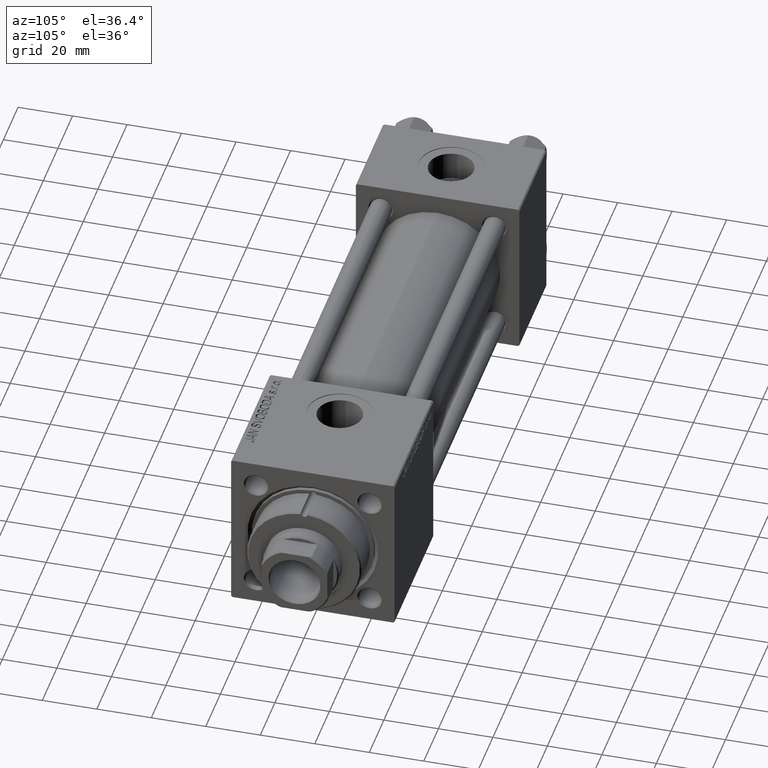
[diagram: clean part render]
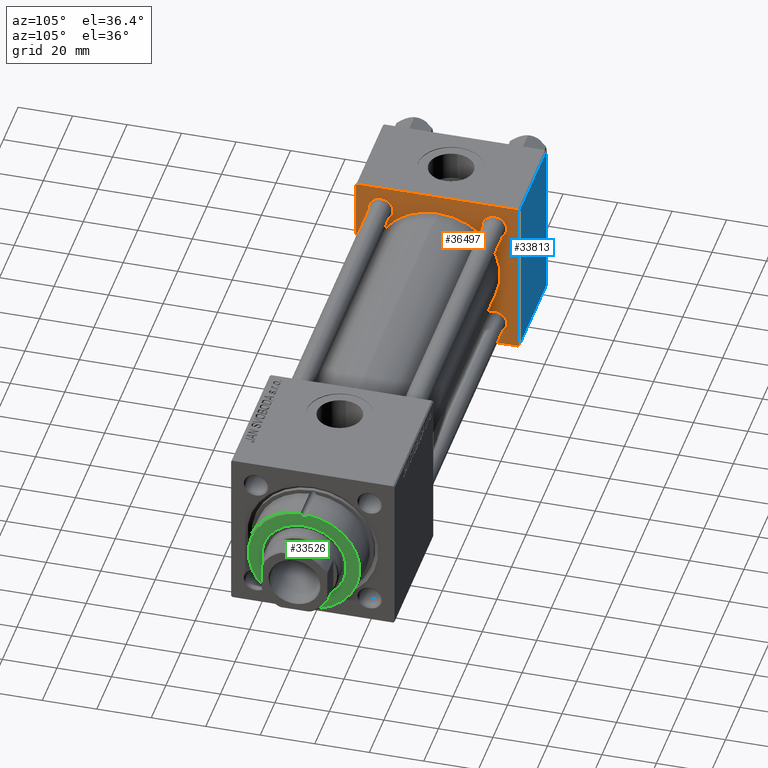
[diagram: same view with three faces highlighted in distinct colors, each labeled with its STEP entity id]
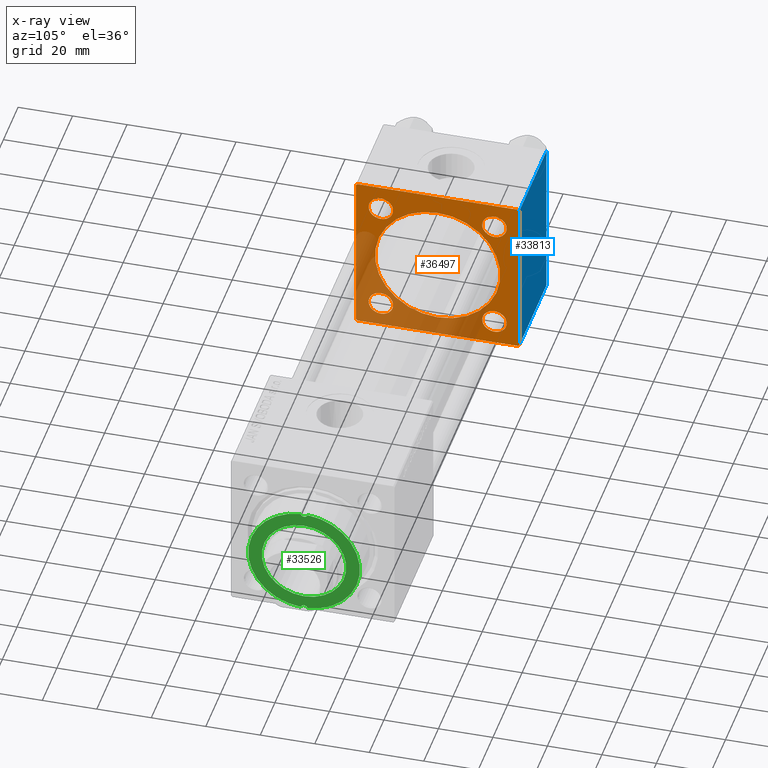
[diagram: x-ray of the same camera — body ghosted, the three highlighted faces saturated]
A machine part, auxiliary view with three faces highlighted in distinct colors.
The next image is the same camera in x-ray (body ghosted, the three faces saturated) — at least one of them is partly hidden behind the body in this view.
Their STEP definitions:

[orange] entity #36497 — the highlighted planar face has unit normal (-1, 0, 0).
#9 = VERTEX_POINT ( 'NONE', #46568 ) ;
#469 = EDGE_CURVE ( 'NONE', #6097, #21026, #3051, .T. ) ;
#531 = ORIENTED_EDGE ( 'NONE', *, *, #14403, .T. ) ;
#652 = DIRECTION ( 'NONE',  ( 0.000000000000000000, 0.000000000000000000, 1.000000000000000000 ) ) ;
#1085 = EDGE_CURVE ( 'NONE', #21924, #43237, #11434, .T. ) ;
#1884 = ORIENTED_EDGE ( 'NONE', *, *, #19276, .F. ) ;
#2124 = VECTOR ( 'NONE', #39286, 1000.000000000000000 ) ;
#3051 = CIRCLE ( 'NONE', #19726, 4.499999999999976019 ) ;
#3818 = DIRECTION ( 'NONE',  ( 0.000000000000000000, 0.000000000000000000, -1.000000000000000000 ) ) ;
#4384 = DIRECTION ( 'NONE',  ( -1.000000000000000000, 0.000000000000000000, -0.000000000000000000 ) ) ;
#4801 = CARTESIAN_POINT ( 'NONE',  ( 37.00000000000000000, -20.84999999999999076, 20.85000000000000497 ) ) ;
#4823 = DIRECTION ( 'NONE',  ( -1.000000000000000000, 0.000000000000000000, -0.000000000000000000 ) ) ;
#5423 = DIRECTION ( 'NONE',  ( 0.000000000000000000, 0.000000000000000000, 1.000000000000000000 ) ) ;
#5666 = EDGE_CURVE ( 'NONE', #40863, #24248, #49898, .T. ) ;
#5994 = CARTESIAN_POINT ( 'NONE',  ( 37.00000000000000000, -20.84999999999999076, -16.35000000000002629 ) ) ;
#6097 = VERTEX_POINT ( 'NONE', #44087 ) ;
#6130 = CIRCLE ( 'NONE', #50258, 4.499999999999976019 ) ;
#6324 = CARTESIAN_POINT ( 'NONE',  ( 37.00000000000000000, 29.49999999999997868, -30.00000000000000000 ) ) ;
#6518 = EDGE_CURVE ( 'NONE', #43237, #21924, #9120, .T. ) ;
#6682 = AXIS2_PLACEMENT_3D ( 'NONE', #34155, #38053, #50091 ) ;
#7171 = CARTESIAN_POINT ( 'NONE',  ( 37.00000000000000000, 20.84999999999999787, 20.85000000000000142 ) ) ;
#7534 = EDGE_CURVE ( 'NONE', #37204, #9, #16078, .T. ) ;
#8302 = DIRECTION ( 'NONE',  ( 0.000000000000000000, 0.7071067811865474617, -0.7071067811865474617 ) ) ;
#8693 = DIRECTION ( 'NONE',  ( -0.000000000000000000, 0.7071067811865574537, 0.7071067811865376918 ) ) ;
#8819 = CARTESIAN_POINT ( 'NONE',  ( 37.00000000000000000, -29.50000000000001066, -30.00000000000000711 ) ) ;
#9077 = EDGE_CURVE ( 'NONE', #24248, #40863, #10015, .T. ) ;
#9120 = CIRCLE ( 'NONE', #39077, 4.499999999999976019 ) ;
#9228 = DIRECTION ( 'NONE',  ( -1.000000000000000000, 0.000000000000000000, -0.000000000000000000 ) ) ;
#9325 = CARTESIAN_POINT ( 'NONE',  ( 37.00000000000000000, -30.00000000000000000, 29.49999999999999289 ) ) ;
#9973 = CARTESIAN_POINT ( 'NONE',  ( 37.00000000000000000, -20.84999999999999076, 20.85000000000000497 ) ) ;
#10015 = CIRCLE ( 'NONE', #12554, 4.499999999999976019 ) ;
#10108 = CARTESIAN_POINT ( 'NONE',  ( 37.00000000000000000, -29.49999999999998579, 29.99999999999999289 ) ) ;
#10480 = CARTESIAN_POINT ( 'NONE',  ( 37.00000000000000711, -2.602085213965210642E-15, 0.000000000000000000 ) ) ;
#10537 = EDGE_LOOP ( 'NONE', ( #30786, #43162 ) ) ;
#10549 = CARTESIAN_POINT ( 'NONE',  ( 37.00000000000000000, 20.84999999999999787, -20.85000000000000142 ) ) ;
#10943 = EDGE_CURVE ( 'NONE', #18357, #12196, #14327, .T. ) ;
#11434 = CIRCLE ( 'NONE', #25569, 4.499999999999976019 ) ;
#11693 = ORIENTED_EDGE ( 'NONE', *, *, #9077, .T. ) ;
#11778 = CARTESIAN_POINT ( 'NONE',  ( 37.00000000000000000, 29.49999999999999289, 30.00000000000000000 ) ) ;
#12196 = VERTEX_POINT ( 'NONE', #11778 ) ;
#12554 = AXIS2_PLACEMENT_3D ( 'NONE', #44275, #4384, #48203 ) ;
#12726 = CARTESIAN_POINT ( 'NONE',  ( 37.00000000000000000, 29.99999999999999289, 29.50000000000000000 ) ) ;
#12876 = CARTESIAN_POINT ( 'NONE',  ( 37.00000000000000711, 2.146024240737016609E-16, -23.00000000000000000 ) ) ;
#13230 = ORIENTED_EDGE ( 'NONE', *, *, #33641, .T. ) ;
#14327 = LINE ( 'NONE', #42230, #15115 ) ;
#14403 = EDGE_CURVE ( 'NONE', #12196, #20566, #22364, .T. ) ;
#14430 = CIRCLE ( 'NONE', #46947, 23.00000000000000000 ) ;
#14556 = DIRECTION ( 'NONE',  ( 0.000000000000000000, -1.000000000000000000, -1.156482317317871725E-16 ) ) ;
#14843 = ORIENTED_EDGE ( 'NONE', *, *, #51039, .T. ) ;
#14943 = FACE_BOUND ( 'NONE', #30082, .T. ) ;
#14988 = CARTESIAN_POINT ( 'NONE',  ( 37.00000000000000000, -20.84999999999999076, 16.35000000000002629 ) ) ;
#15115 = VECTOR ( 'NONE', #45386, 1000.000000000000114 ) ;
#16078 = LINE ( 'NONE', #43198, #16648 ) ;
#16299 = CARTESIAN_POINT ( 'NONE',  ( 37.00000000000000000, 20.84999999999999787, -20.85000000000000142 ) ) ;
#16441 = DIRECTION ( 'NONE',  ( -1.000000000000000000, 0.000000000000000000, -0.000000000000000000 ) ) ;
#16636 = CARTESIAN_POINT ( 'NONE',  ( 37.00000000000000000, -20.84999999999999076, -20.85000000000000497 ) ) ;
#16648 = VECTOR ( 'NONE', #40319, 1000.000000000000000 ) ;
#17426 = LINE ( 'NONE', #41917, #39571 ) ;
#17593 = AXIS2_PLACEMENT_3D ( 'NONE', #23265, #43871, #31606 ) ;
#18040 = ORIENTED_EDGE ( 'NONE', *, *, #23411, .T. ) ;
#18357 = VERTEX_POINT ( 'NONE', #12726 ) ;
#18476 = VERTEX_POINT ( 'NONE', #45822 ) ;
#18980 = CARTESIAN_POINT ( 'NONE',  ( 37.00000000000000000, 29.99999999999999289, 30.00000000000000000 ) ) ;
#19087 = EDGE_CURVE ( 'NONE', #37204, #28132, #45451, .T. ) ;
#19105 = FACE_OUTER_BOUND ( 'NONE', #48819, .T. ) ;
#19276 = EDGE_CURVE ( 'NONE', #18476, #32796, #14430, .T. ) ;
#19363 = FACE_BOUND ( 'NONE', #33929, .T. ) ;
#19726 = AXIS2_PLACEMENT_3D ( 'NONE', #51399, #16441, #28141 ) ;
#20415 = ORIENTED_EDGE ( 'NONE', *, *, #51145, .T. ) ;
#20566 = VERTEX_POINT ( 'NONE', #10108 ) ;
#21026 = VERTEX_POINT ( 'NONE', #24311 ) ;
#21924 = VERTEX_POINT ( 'NONE', #30410 ) ;
#21951 = DIRECTION ( 'NONE',  ( 0.000000000000000000, 0.000000000000000000, 1.000000000000000000 ) ) ;
#22253 = EDGE_LOOP ( 'NONE', ( #1884, #30026 ) ) ;
#22364 = LINE ( 'NONE', #18980, #45088 ) ;
#23265 = CARTESIAN_POINT ( 'NONE',  ( 37.00000000000000000, 0.000000000000000000, 0.000000000000000000 ) ) ;
#23301 = DIRECTION ( 'NONE',  ( 0.000000000000000000, 0.000000000000000000, 1.000000000000000000 ) ) ;
#23411 = EDGE_CURVE ( 'NONE', #34366, #49537, #30518, .T. ) ;
#23909 = ORIENTED_EDGE ( 'NONE', *, *, #6518, .T. ) ;
#24248 = VERTEX_POINT ( 'NONE', #5994 ) ;
#24311 = CARTESIAN_POINT ( 'NONE',  ( 37.00000000000000000, 20.84999999999999787, 25.34999999999997655 ) ) ;
#24493 = ORIENTED_EDGE ( 'NONE', *, *, #32312, .F. ) ;
#25569 = AXIS2_PLACEMENT_3D ( 'NONE', #16299, #4823, #652 ) ;
#25862 = DIRECTION ( 'NONE',  ( 1.000000000000000000, -0.000000000000000000, 0.000000000000000000 ) ) ;
#26070 = ORIENTED_EDGE ( 'NONE', *, *, #49149, .T. ) ;
#27144 = CARTESIAN_POINT ( 'NONE',  ( 37.00000000000000000, -20.84999999999999076, 25.34999999999998010 ) ) ;
#27229 = DIRECTION ( 'NONE',  ( -1.000000000000000000, 0.000000000000000000, -0.000000000000000000 ) ) ;
#27283 = LINE ( 'NONE', #46620, #2124 ) ;
#27754 = VECTOR ( 'NONE', #8693, 999.9999999999998863 ) ;
#28132 = VERTEX_POINT ( 'NONE', #50971 ) ;
#28141 = DIRECTION ( 'NONE',  ( 0.000000000000000000, 0.000000000000000000, 1.000000000000000000 ) ) ;
#29160 = CIRCLE ( 'NONE', #6682, 23.00000000000000000 ) ;
#29841 = DIRECTION ( 'NONE',  ( -1.000000000000000000, 0.000000000000000000, -0.000000000000000000 ) ) ;
#30026 = ORIENTED_EDGE ( 'NONE', *, *, #34568, .F. ) ;
#30082 = EDGE_LOOP ( 'NONE', ( #18040, #13230 ) ) ;
#30410 = CARTESIAN_POINT ( 'NONE',  ( 37.00000000000000000, 20.84999999999999787, -25.34999999999997655 ) ) ;
#30518 = CIRCLE ( 'NONE', #33843, 4.499999999999976019 ) ;
#30786 = ORIENTED_EDGE ( 'NONE', *, *, #469, .T. ) ;
#31145 = CARTESIAN_POINT ( 'NONE',  ( 37.00000000000000000, -30.00000000000000000, -29.50000000000001776 ) ) ;
#31405 = DIRECTION ( 'NONE',  ( 0.000000000000000000, 0.000000000000000000, 1.000000000000000000 ) ) ;
#31606 = DIRECTION ( 'NONE',  ( -0.000000000000000000, 0.000000000000000000, 1.000000000000000000 ) ) ;
#31871 = FACE_BOUND ( 'NONE', #22253, .T. ) ;
#32011 = ORIENTED_EDGE ( 'NONE', *, *, #10943, .T. ) ;
#32312 = EDGE_CURVE ( 'NONE', #18357, #28132, #35633, .T. ) ;
#32796 = VERTEX_POINT ( 'NONE', #12876 ) ;
#33559 = VERTEX_POINT ( 'NONE', #31145 ) ;
#33641 = EDGE_CURVE ( 'NONE', #49537, #34366, #41595, .T. ) ;
#33843 = AXIS2_PLACEMENT_3D ( 'NONE', #9973, #45703, #41283 ) ;
#33929 = EDGE_LOOP ( 'NONE', ( #48199, #11693 ) ) ;
#34073 = VECTOR ( 'NONE', #3818, 1000.000000000000000 ) ;
#34155 = CARTESIAN_POINT ( 'NONE',  ( 37.00000000000000711, -2.602085213965210642E-15, 0.000000000000000000 ) ) ;
#34366 = VERTEX_POINT ( 'NONE', #14988 ) ;
#34568 = EDGE_CURVE ( 'NONE', #32796, #18476, #29160, .T. ) ;
#35535 = PLANE ( 'NONE',  #17593 ) ;
#35633 = LINE ( 'NONE', #43712, #34073 ) ;
#35740 = AXIS2_PLACEMENT_3D ( 'NONE', #16636, #36965, #5423 ) ;
#36459 = LINE ( 'NONE', #8819, #44543 ) ;
#36497 = ADVANCED_FACE ( 'NONE', ( #19363, #43097, #14943, #50960, #31871, #19105 ), #35535, .F. ) ;
#36823 = ORIENTED_EDGE ( 'NONE', *, *, #19087, .T. ) ;
#36965 = DIRECTION ( 'NONE',  ( -1.000000000000000000, 0.000000000000000000, -0.000000000000000000 ) ) ;
#37198 = ORIENTED_EDGE ( 'NONE', *, *, #7534, .F. ) ;
#37204 = VERTEX_POINT ( 'NONE', #6324 ) ;
#38053 = DIRECTION ( 'NONE',  ( 1.000000000000000000, -0.000000000000000000, 0.000000000000000000 ) ) ;
#38591 = CARTESIAN_POINT ( 'NONE',  ( 37.00000000000000000, 20.84999999999999787, -16.35000000000002274 ) ) ;
#39077 = AXIS2_PLACEMENT_3D ( 'NONE', #10549, #29841, #23301 ) ;
#39286 = DIRECTION ( 'NONE',  ( 0.000000000000000000, 0.000000000000000000, -1.000000000000000000 ) ) ;
#39571 = VECTOR ( 'NONE', #50287, 1000.000000000000114 ) ;
#40319 = DIRECTION ( 'NONE',  ( 0.000000000000000000, -1.000000000000000000, -1.156482317317871725E-16 ) ) ;
#40863 = VERTEX_POINT ( 'NONE', #50225 ) ;
#41283 = DIRECTION ( 'NONE',  ( 0.000000000000000000, 0.000000000000000000, 1.000000000000000000 ) ) ;
#41595 = CIRCLE ( 'NONE', #47460, 4.499999999999976019 ) ;
#41917 = CARTESIAN_POINT ( 'NONE',  ( 37.00000000000000000, -30.00000000000000000, 29.49999999999999289 ) ) ;
#42230 = CARTESIAN_POINT ( 'NONE',  ( 37.00000000000000000, 29.49999999999999289, 30.00000000000000000 ) ) ;
#42835 = EDGE_CURVE ( 'NONE', #21026, #6097, #6130, .T. ) ;
#43097 = FACE_BOUND ( 'NONE', #45175, .T. ) ;
#43162 = ORIENTED_EDGE ( 'NONE', *, *, #42835, .T. ) ;
#43181 = ORIENTED_EDGE ( 'NONE', *, *, #1085, .T. ) ;
#43198 = CARTESIAN_POINT ( 'NONE',  ( 37.00000000000000000, 29.99999999999999289, -30.00000000000000000 ) ) ;
#43237 = VERTEX_POINT ( 'NONE', #38591 ) ;
#43712 = CARTESIAN_POINT ( 'NONE',  ( 37.00000000000000000, 29.99999999999999289, 30.00000000000000000 ) ) ;
#43871 = DIRECTION ( 'NONE',  ( -1.000000000000000000, 0.000000000000000000, -0.000000000000000000 ) ) ;
#44087 = CARTESIAN_POINT ( 'NONE',  ( 37.00000000000000000, 20.84999999999999787, 16.35000000000002274 ) ) ;
#44275 = CARTESIAN_POINT ( 'NONE',  ( 37.00000000000000000, -20.84999999999999076, -20.85000000000000497 ) ) ;
#44543 = VECTOR ( 'NONE', #8302, 1000.000000000000114 ) ;
#45088 = VECTOR ( 'NONE', #14556, 1000.000000000000000 ) ;
#45175 = EDGE_LOOP ( 'NONE', ( #43181, #23909 ) ) ;
#45386 = DIRECTION ( 'NONE',  ( 0.000000000000000000, -0.7071067811865474617, 0.7071067811865474617 ) ) ;
#45451 = LINE ( 'NONE', #48350, #27754 ) ;
#45703 = DIRECTION ( 'NONE',  ( -1.000000000000000000, 0.000000000000000000, -0.000000000000000000 ) ) ;
#45822 = CARTESIAN_POINT ( 'NONE',  ( 37.00000000000000711, -2.602085213965210642E-15, 23.00000000000000000 ) ) ;
#46568 = CARTESIAN_POINT ( 'NONE',  ( 37.00000000000000000, -29.50000000000000000, -30.00000000000000711 ) ) ;
#46620 = CARTESIAN_POINT ( 'NONE',  ( 37.00000000000000000, -30.00000000000000000, 29.99999999999999289 ) ) ;
#46947 = AXIS2_PLACEMENT_3D ( 'NONE', #10480, #25862, #21951 ) ;
#47346 = VERTEX_POINT ( 'NONE', #9325 ) ;
#47460 = AXIS2_PLACEMENT_3D ( 'NONE', #4801, #9228, #48625 ) ;
#48199 = ORIENTED_EDGE ( 'NONE', *, *, #5666, .T. ) ;
#48203 = DIRECTION ( 'NONE',  ( 0.000000000000000000, 0.000000000000000000, 1.000000000000000000 ) ) ;
#48350 = CARTESIAN_POINT ( 'NONE',  ( 37.00000000000000000, 29.99999999999999289, -29.50000000000000000 ) ) ;
#48625 = DIRECTION ( 'NONE',  ( 0.000000000000000000, 0.000000000000000000, 1.000000000000000000 ) ) ;
#48819 = EDGE_LOOP ( 'NONE', ( #37198, #36823, #24493, #32011, #531, #14843, #20415, #26070 ) ) ;
#49149 = EDGE_CURVE ( 'NONE', #33559, #9, #36459, .T. ) ;
#49537 = VERTEX_POINT ( 'NONE', #27144 ) ;
#49898 = CIRCLE ( 'NONE', #35740, 4.499999999999976019 ) ;
#50091 = DIRECTION ( 'NONE',  ( 0.000000000000000000, 0.000000000000000000, 1.000000000000000000 ) ) ;
#50225 = CARTESIAN_POINT ( 'NONE',  ( 37.00000000000000000, -20.84999999999999076, -25.34999999999998010 ) ) ;
#50258 = AXIS2_PLACEMENT_3D ( 'NONE', #7171, #27229, #31405 ) ;
#50287 = DIRECTION ( 'NONE',  ( -0.000000000000000000, -0.7071067811865474617, -0.7071067811865474617 ) ) ;
#50960 = FACE_BOUND ( 'NONE', #10537, .T. ) ;
#50971 = CARTESIAN_POINT ( 'NONE',  ( 37.00000000000000000, 29.99999999999999289, -29.50000000000000000 ) ) ;
#51039 = EDGE_CURVE ( 'NONE', #20566, #47346, #17426, .T. ) ;
#51145 = EDGE_CURVE ( 'NONE', #47346, #33559, #27283, .T. ) ;
#51399 = CARTESIAN_POINT ( 'NONE',  ( 37.00000000000000000, 20.84999999999999787, 20.85000000000000142 ) ) ;

[blue] entity #33813 — the highlighted planar face has unit normal (0, 1, 0).
#3707 = PLANE ( 'NONE',  #31615 ) ;
#3818 = DIRECTION ( 'NONE',  ( 0.000000000000000000, 0.000000000000000000, -1.000000000000000000 ) ) ;
#3969 = FACE_OUTER_BOUND ( 'NONE', #44055, .T. ) ;
#4473 = VECTOR ( 'NONE', #29014, 1000.000000000000000 ) ;
#9147 = ORIENTED_EDGE ( 'NONE', *, *, #31106, .T. ) ;
#11454 = LINE ( 'NONE', #32287, #13513 ) ;
#11571 = LINE ( 'NONE', #19647, #4473 ) ;
#12726 = CARTESIAN_POINT ( 'NONE',  ( 37.00000000000000000, 29.99999999999999289, 29.50000000000000000 ) ) ;
#13513 = VECTOR ( 'NONE', #28118, 1000.000000000000000 ) ;
#16255 = CARTESIAN_POINT ( 'NONE',  ( 37.00000000000000000, 29.99999999999999289, 29.50000000000000000 ) ) ;
#16305 = EDGE_CURVE ( 'NONE', #28132, #25620, #11454, .T. ) ;
#18357 = VERTEX_POINT ( 'NONE', #12726 ) ;
#19054 = EDGE_CURVE ( 'NONE', #50058, #25620, #11571, .T. ) ;
#19349 = CARTESIAN_POINT ( 'NONE',  ( 37.00000000000000000, 29.99999999999999289, 30.00000000000000000 ) ) ;
#19647 = CARTESIAN_POINT ( 'NONE',  ( 0.000000000000000000, 29.99999999999999289, 30.00000000000000000 ) ) ;
#19893 = LINE ( 'NONE', #16255, #44142 ) ;
#22882 = ORIENTED_EDGE ( 'NONE', *, *, #32312, .T. ) ;
#22956 = ORIENTED_EDGE ( 'NONE', *, *, #16305, .T. ) ;
#23761 = CARTESIAN_POINT ( 'NONE',  ( 0.000000000000000000, 29.99999999999999289, -29.50000000000000000 ) ) ;
#23768 = DIRECTION ( 'NONE',  ( -0.000000000000000000, 1.000000000000000000, 0.000000000000000000 ) ) ;
#25620 = VERTEX_POINT ( 'NONE', #23761 ) ;
#28118 = DIRECTION ( 'NONE',  ( -1.000000000000000000, 0.000000000000000000, 0.000000000000000000 ) ) ;
#28132 = VERTEX_POINT ( 'NONE', #50971 ) ;
#29014 = DIRECTION ( 'NONE',  ( 0.000000000000000000, 0.000000000000000000, -1.000000000000000000 ) ) ;
#31106 = EDGE_CURVE ( 'NONE', #50058, #18357, #19893, .T. ) ;
#31615 = AXIS2_PLACEMENT_3D ( 'NONE', #19349, #23768, #47526 ) ;
#32287 = CARTESIAN_POINT ( 'NONE',  ( 37.00000000000000000, 29.99999999999999289, -29.50000000000000000 ) ) ;
#32312 = EDGE_CURVE ( 'NONE', #18357, #28132, #35633, .T. ) ;
#33813 = ADVANCED_FACE ( 'NONE', ( #3969 ), #3707, .T. ) ;
#34073 = VECTOR ( 'NONE', #3818, 1000.000000000000000 ) ;
#35633 = LINE ( 'NONE', #43712, #34073 ) ;
#35810 = DIRECTION ( 'NONE',  ( 1.000000000000000000, 0.000000000000000000, 0.000000000000000000 ) ) ;
#36479 = ORIENTED_EDGE ( 'NONE', *, *, #19054, .F. ) ;
#37232 = CARTESIAN_POINT ( 'NONE',  ( 0.000000000000000000, 29.99999999999999289, 29.50000000000000000 ) ) ;
#43712 = CARTESIAN_POINT ( 'NONE',  ( 37.00000000000000000, 29.99999999999999289, 30.00000000000000000 ) ) ;
#44055 = EDGE_LOOP ( 'NONE', ( #22882, #22956, #36479, #9147 ) ) ;
#44142 = VECTOR ( 'NONE', #35810, 1000.000000000000000 ) ;
#47526 = DIRECTION ( 'NONE',  ( 0.000000000000000000, -0.000000000000000000, 1.000000000000000000 ) ) ;
#50058 = VERTEX_POINT ( 'NONE', #37232 ) ;
#50971 = CARTESIAN_POINT ( 'NONE',  ( 37.00000000000000000, 29.99999999999999289, -29.50000000000000000 ) ) ;

[green] entity #33526 — the highlighted planar face has unit normal (1, 0, 0).
#67 = CIRCLE ( 'NONE', #16702, 15.50000000000000000 ) ;
#321 = CARTESIAN_POINT ( 'NONE',  ( 0.000000000000000000, 0.000000000000000000, 40.70000000000000284 ) ) ;
#599 = CARTESIAN_POINT ( 'NONE',  ( 0.000000000000000000, 0.000000000000000000, 40.70000000000000284 ) ) ;
#778 = AXIS2_PLACEMENT_3D ( 'NONE', #41245, #21413, #37322 ) ;
#1215 = AXIS2_PLACEMENT_3D ( 'NONE', #10667, #26558, #7268 ) ;
#1790 = CARTESIAN_POINT ( 'NONE',  ( -20.75000000000000000, 0.000000000000000000, 40.70000000000000284 ) ) ;
#2525 = AXIS2_PLACEMENT_3D ( 'NONE', #16259, #13114, #29003 ) ;
#4234 = DIRECTION ( 'NONE',  ( 0.000000000000000000, 0.000000000000000000, 1.000000000000000000 ) ) ;
#4591 = ORIENTED_EDGE ( 'NONE', *, *, #36784, .T. ) ;
#6143 = CARTESIAN_POINT ( 'NONE',  ( 19.50000000000000000, 1.530808498934195022E-16, 40.70000000000000284 ) ) ;
#6373 = ORIENTED_EDGE ( 'NONE', *, *, #49016, .F. ) ;
#7163 = FACE_OUTER_BOUND ( 'NONE', #15420, .T. ) ;
#7268 = DIRECTION ( 'NONE',  ( 1.000000000000000000, 0.000000000000000000, 0.000000000000000000 ) ) ;
#7419 = FACE_BOUND ( 'NONE', #35601, .T. ) ;
#9424 = EDGE_CURVE ( 'NONE', #13054, #40851, #40843, .T. ) ;
#10405 = CIRCLE ( 'NONE', #18710, 1.250000000000001110 ) ;
#10667 = CARTESIAN_POINT ( 'NONE',  ( 20.75000000000000000, 0.000000000000000000, 40.70000000000000284 ) ) ;
#11372 = ORIENTED_EDGE ( 'NONE', *, *, #9424, .F. ) ;
#12866 = CIRCLE ( 'NONE', #1215, 1.250000000000001110 ) ;
#13054 = VERTEX_POINT ( 'NONE', #50099 ) ;
#13114 = DIRECTION ( 'NONE',  ( -0.000000000000000000, -0.000000000000000000, 1.000000000000000000 ) ) ;
#13274 = DIRECTION ( 'NONE',  ( -0.000000000000000000, -0.000000000000000000, 1.000000000000000000 ) ) ;
#13349 = EDGE_CURVE ( 'NONE', #35487, #33186, #50045, .T. ) ;
#14154 = CARTESIAN_POINT ( 'NONE',  ( -20.46385542168674476, -1.216807823899045626, 40.70000000000000284 ) ) ;
#15333 = ORIENTED_EDGE ( 'NONE', *, *, #13349, .F. ) ;
#15420 = EDGE_LOOP ( 'NONE', ( #15333, #36903, #6373, #11372, #4591, #17770 ) ) ;
#15504 = DIRECTION ( 'NONE',  ( 0.000000000000000000, 0.000000000000000000, 1.000000000000000000 ) ) ;
#16259 = CARTESIAN_POINT ( 'NONE',  ( 20.75000000000000000, 0.000000000000000000, 40.70000000000000284 ) ) ;
#16702 = AXIS2_PLACEMENT_3D ( 'NONE', #321, #4234, #27946 ) ;
#16747 = CIRCLE ( 'NONE', #40900, 20.49999999999999645 ) ;
#16840 = CARTESIAN_POINT ( 'NONE',  ( -20.75000000000000000, 0.000000000000000000, 40.70000000000000284 ) ) ;
#17770 = ORIENTED_EDGE ( 'NONE', *, *, #22072, .F. ) ;
#18710 = AXIS2_PLACEMENT_3D ( 'NONE', #16840, #36647, #31954 ) ;
#20411 = DIRECTION ( 'NONE',  ( 1.000000000000000000, 0.000000000000000000, 0.000000000000000000 ) ) ;
#21413 = DIRECTION ( 'NONE',  ( 0.000000000000000000, 0.000000000000000000, 1.000000000000000000 ) ) ;
#22072 = EDGE_CURVE ( 'NONE', #33186, #44392, #10405, .T. ) ;
#23061 = CARTESIAN_POINT ( 'NONE',  ( 0.000000000000000000, 0.000000000000000000, 40.70000000000000284 ) ) ;
#23273 = AXIS2_PLACEMENT_3D ( 'NONE', #23061, #15504, #47326 ) ;
#26558 = DIRECTION ( 'NONE',  ( -0.000000000000000000, -0.000000000000000000, 1.000000000000000000 ) ) ;
#27112 = DIRECTION ( 'NONE',  ( 0.000000000000000000, 0.000000000000000000, 1.000000000000000000 ) ) ;
#27946 = DIRECTION ( 'NONE',  ( 1.000000000000000000, 0.000000000000000000, 0.000000000000000000 ) ) ;
#28222 = DIRECTION ( 'NONE',  ( 0.000000000000000000, 0.000000000000000000, 1.000000000000000000 ) ) ;
#29003 = DIRECTION ( 'NONE',  ( 1.000000000000000000, 0.000000000000000000, 0.000000000000000000 ) ) ;
#29166 = DIRECTION ( 'NONE',  ( 1.000000000000000000, 0.000000000000000000, 0.000000000000000000 ) ) ;
#29332 = EDGE_CURVE ( 'NONE', #41361, #49967, #35770, .T. ) ;
#30683 = CARTESIAN_POINT ( 'NONE',  ( -19.50000000000000000, 0.000000000000000000, 40.70000000000000284 ) ) ;
#31653 = PLANE ( 'NONE',  #23273 ) ;
#31945 = CIRCLE ( 'NONE', #37776, 20.49999999999999645 ) ;
#31954 = DIRECTION ( 'NONE',  ( 1.000000000000000000, 0.000000000000000000, 0.000000000000000000 ) ) ;
#32065 = CARTESIAN_POINT ( 'NONE',  ( -20.46385542168674476, 1.216807823899045404, 40.70000000000000284 ) ) ;
#33111 = VERTEX_POINT ( 'NONE', #42427 ) ;
#33186 = VERTEX_POINT ( 'NONE', #30683 ) ;
#33526 = ADVANCED_FACE ( 'NONE', ( #7163, #7419 ), #31653, .T. ) ;
#35487 = VERTEX_POINT ( 'NONE', #14154 ) ;
#35601 = EDGE_LOOP ( 'NONE', ( #39635, #49112 ) ) ;
#35653 = EDGE_CURVE ( 'NONE', #49967, #41361, #67, .T. ) ;
#35770 = CIRCLE ( 'NONE', #778, 15.50000000000000000 ) ;
#35890 = AXIS2_PLACEMENT_3D ( 'NONE', #1790, #13274, #29166 ) ;
#36647 = DIRECTION ( 'NONE',  ( -0.000000000000000000, -0.000000000000000000, 1.000000000000000000 ) ) ;
#36784 = EDGE_CURVE ( 'NONE', #13054, #44392, #16747, .T. ) ;
#36903 = ORIENTED_EDGE ( 'NONE', *, *, #46106, .T. ) ;
#37322 = DIRECTION ( 'NONE',  ( 1.000000000000000000, 0.000000000000000000, 0.000000000000000000 ) ) ;
#37776 = AXIS2_PLACEMENT_3D ( 'NONE', #599, #28222, #20411 ) ;
#39635 = ORIENTED_EDGE ( 'NONE', *, *, #29332, .F. ) ;
#40121 = CARTESIAN_POINT ( 'NONE',  ( -15.50000000000000000, 1.898202538678397557E-15, 40.70000000000000284 ) ) ;
#40843 = CIRCLE ( 'NONE', #2525, 1.250000000000001110 ) ;
#40851 = VERTEX_POINT ( 'NONE', #6143 ) ;
#40900 = AXIS2_PLACEMENT_3D ( 'NONE', #46961, #27112, #51406 ) ;
#40981 = CARTESIAN_POINT ( 'NONE',  ( 15.50000000000000000, 0.000000000000000000, 40.70000000000000284 ) ) ;
#41245 = CARTESIAN_POINT ( 'NONE',  ( 0.000000000000000000, 0.000000000000000000, 40.70000000000000284 ) ) ;
#41361 = VERTEX_POINT ( 'NONE', #40981 ) ;
#42427 = CARTESIAN_POINT ( 'NONE',  ( 20.46385542168674476, -1.216807823899045404, 40.70000000000000284 ) ) ;
#44392 = VERTEX_POINT ( 'NONE', #32065 ) ;
#46106 = EDGE_CURVE ( 'NONE', #35487, #33111, #31945, .T. ) ;
#46961 = CARTESIAN_POINT ( 'NONE',  ( 0.000000000000000000, 0.000000000000000000, 40.70000000000000284 ) ) ;
#47326 = DIRECTION ( 'NONE',  ( 1.000000000000000000, 0.000000000000000000, -0.000000000000000000 ) ) ;
#49016 = EDGE_CURVE ( 'NONE', #40851, #33111, #12866, .T. ) ;
#49112 = ORIENTED_EDGE ( 'NONE', *, *, #35653, .F. ) ;
#49967 = VERTEX_POINT ( 'NONE', #40121 ) ;
#50045 = CIRCLE ( 'NONE', #35890, 1.250000000000001110 ) ;
#50099 = CARTESIAN_POINT ( 'NONE',  ( 20.46385542168674476, 1.216807823899045626, 40.70000000000000284 ) ) ;
#51406 = DIRECTION ( 'NONE',  ( 1.000000000000000000, 0.000000000000000000, 0.000000000000000000 ) ) ;